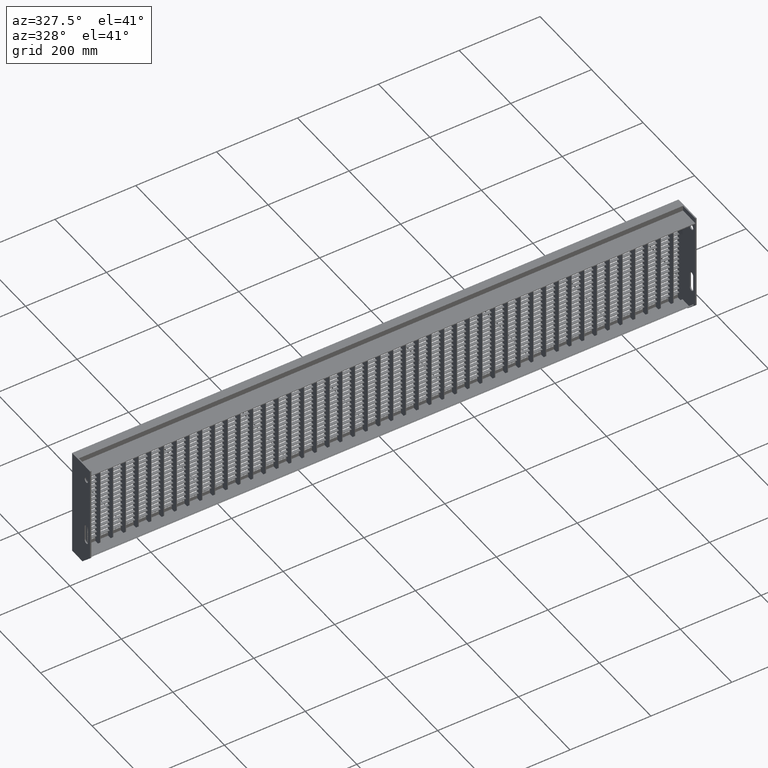
[diagram: clean part render]
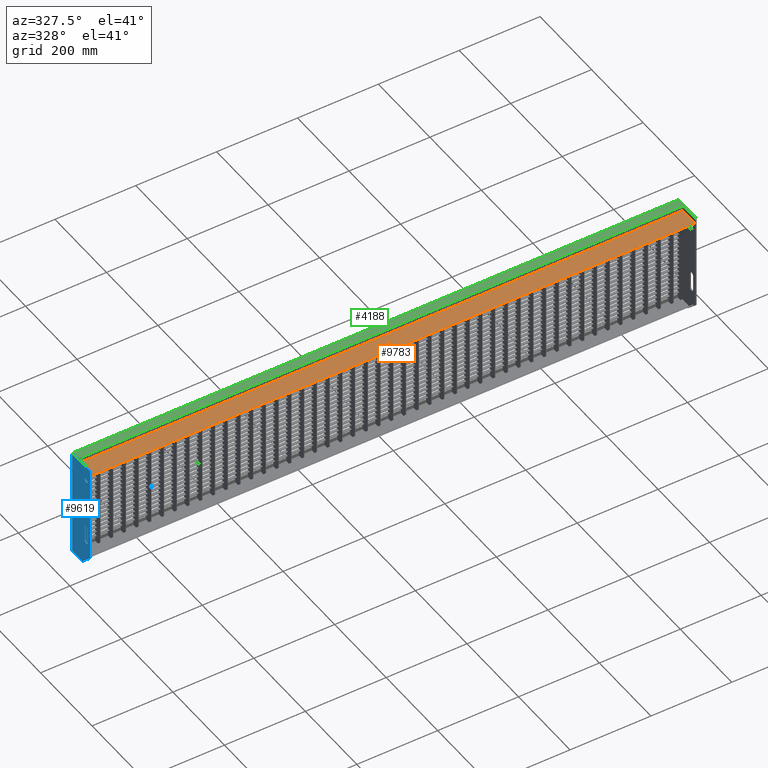
[diagram: same view with three faces highlighted in distinct colors, each labeled with its STEP entity id]
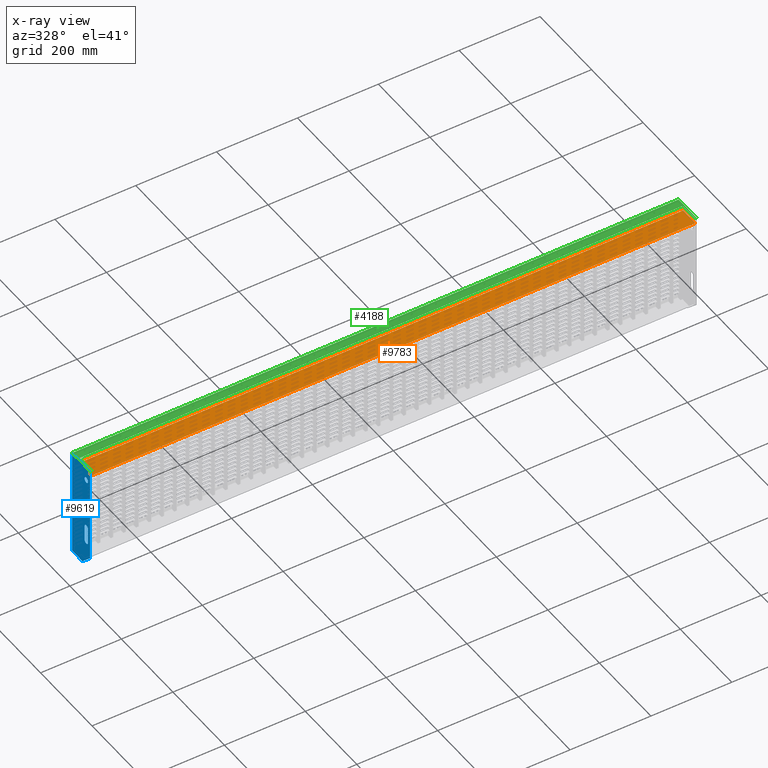
[diagram: x-ray of the same camera — body ghosted, the three highlighted faces saturated]
A machine part, auxiliary view with three faces highlighted in distinct colors.
The next image is the same camera in x-ray (body ghosted, the three faces saturated) — at least one of them is partly hidden behind the body in this view.
Their STEP definitions:

[orange] entity #9783 — the highlighted planar face has unit normal (0, -0, -1).
#2552 = PLANE ( 'NONE',  #5595 ) ;
#4447 = CARTESIAN_POINT ( 'NONE',  ( 747.0000000000000000, 48.00000000000011400, -13.00000000000000000 ) ) ;
#5595 = AXIS2_PLACEMENT_3D ( 'NONE', #23600, #43978, #19891 ) ;
#9718 = VECTOR ( 'NONE', #25368, 1000.000000000000000 ) ;
#9783 = ADVANCED_FACE ( 'NONE', ( #34456 ), #2552, .F. ) ;
#9870 = CARTESIAN_POINT ( 'NONE',  ( -747.0000000000000000, 2.755455298081544900E-013, -13.00000000000001100 ) ) ;
#10511 = VERTEX_POINT ( 'NONE', #23636 ) ;
#10850 = DIRECTION ( 'NONE',  ( 1.000000000000000000, -0.0000000000000000000, -0.0000000000000000000 ) ) ;
#11707 = DIRECTION ( 'NONE',  ( -0.0000000000000000000, 1.000000000000000000, -3.614007241618339900E-017 ) ) ;
#13529 = EDGE_LOOP ( 'NONE', ( #34089, #42555, #15536, #28841 ) ) ;
#13790 = LINE ( 'NONE', #37653, #19592 ) ;
#15169 = CARTESIAN_POINT ( 'NONE',  ( -747.0000000000000000, 48.00000000000011400, -13.00000000000000000 ) ) ;
#15536 = ORIENTED_EDGE ( 'NONE', *, *, #33456, .T. ) ;
#15710 = VERTEX_POINT ( 'NONE', #9870 ) ;
#19592 = VECTOR ( 'NONE', #10850, 1000.000000000000000 ) ;
#19891 = DIRECTION ( 'NONE',  ( 0.0000000000000000000, 1.000000000000000000, -3.614007241618340500E-017 ) ) ;
#20775 = VERTEX_POINT ( 'NONE', #15169 ) ;
#22779 = VERTEX_POINT ( 'NONE', #28107 ) ;
#23385 = EDGE_CURVE ( 'NONE', #10511, #22779, #34606, .T. ) ;
#23600 = CARTESIAN_POINT ( 'NONE',  ( -823.1577310586392300, 48.00000000000011400, -13.00000000000000000 ) ) ;
#23636 = CARTESIAN_POINT ( 'NONE',  ( 747.0000000000000000, 5.050613422867832400E-016, -12.99999999999999800 ) ) ;
#23801 = LINE ( 'NONE', #29527, #39794 ) ;
#23944 = VECTOR ( 'NONE', #11707, 1000.000000000000000 ) ;
#24299 = EDGE_CURVE ( 'NONE', #20775, #22779, #13790, .T. ) ;
#25368 = DIRECTION ( 'NONE',  ( 1.000000000000000000, -0.0000000000000000000, -0.0000000000000000000 ) ) ;
#25702 = EDGE_CURVE ( 'NONE', #20775, #15710, #23801, .T. ) ;
#28107 = CARTESIAN_POINT ( 'NONE',  ( 747.0000000000000000, 48.00000000000011400, -13.00000000000000000 ) ) ;
#28841 = ORIENTED_EDGE ( 'NONE', *, *, #23385, .T. ) ;
#29527 = CARTESIAN_POINT ( 'NONE',  ( -747.0000000000000000, 48.00000000000011400, -13.00000000000000000 ) ) ;
#32511 = CARTESIAN_POINT ( 'NONE',  ( -823.1577310586392300, 5.050613422867832400E-016, -12.99999999999999800 ) ) ;
#33456 = EDGE_CURVE ( 'NONE', #15710, #10511, #34218, .T. ) ;
#34089 = ORIENTED_EDGE ( 'NONE', *, *, #24299, .F. ) ;
#34218 = LINE ( 'NONE', #32511, #9718 ) ;
#34456 = FACE_OUTER_BOUND ( 'NONE', #13529, .T. ) ;
#34606 = LINE ( 'NONE', #4447, #23944 ) ;
#37653 = CARTESIAN_POINT ( 'NONE',  ( -823.1577310586392300, 48.00000000000011400, -13.00000000000000000 ) ) ;
#39794 = VECTOR ( 'NONE', #40105, 1000.000000000000000 ) ;
#40105 = DIRECTION ( 'NONE',  ( 0.0000000000000000000, -1.000000000000000000, 3.614007241618340500E-017 ) ) ;
#42555 = ORIENTED_EDGE ( 'NONE', *, *, #25702, .T. ) ;
#43978 = DIRECTION ( 'NONE',  ( 0.0000000000000000000, -3.614007241618340500E-017, -1.000000000000000000 ) ) ;

[blue] entity #9619 — the highlighted planar face has unit normal (1, 0, -0).
#120 = EDGE_CURVE ( 'NONE', #38455, #5864, #1165, .T. ) ;
#1165 = CIRCLE ( 'NONE', #10998, 6.500000000000005300 ) ;
#1824 = PLANE ( 'NONE',  #15557 ) ;
#3237 = EDGE_CURVE ( 'NONE', #43084, #30649, #37079, .T. ) ;
#3494 = CARTESIAN_POINT ( 'NONE',  ( -750.0000000000000000, 8.500000000000238000, -166.4999999999999400 ) ) ;
#3894 = VERTEX_POINT ( 'NONE', #36951 ) ;
#4539 = DIRECTION ( 'NONE',  ( 0.0000000000000000000, 0.0000000000000000000, -1.000000000000000000 ) ) ;
#4628 = CARTESIAN_POINT ( 'NONE',  ( -750.0000000000000000, 2.755455298081544900E-013, -240.0000000000001700 ) ) ;
#4788 = CARTESIAN_POINT ( 'NONE',  ( -750.0000000000000000, 70.00000000000028400, -270.0000000000000000 ) ) ;
#5740 = EDGE_CURVE ( 'NONE', #13554, #17498, #31503, .T. ) ;
#5797 = CIRCLE ( 'NONE', #8046, 6.500000000000005300 ) ;
#5852 = EDGE_CURVE ( 'NONE', #30649, #43084, #19787, .T. ) ;
#5864 = VERTEX_POINT ( 'NONE', #3494 ) ;
#5964 = CARTESIAN_POINT ( 'NONE',  ( -750.0000000000000000, 30.00000000000028100, -270.0000000000000000 ) ) ;
#6456 = VECTOR ( 'NONE', #38842, 1000.000000000000000 ) ;
#7367 = VERTEX_POINT ( 'NONE', #4628 ) ;
#7399 = EDGE_CURVE ( 'NONE', #25303, #14770, #18689, .T. ) ;
#7734 = DIRECTION ( 'NONE',  ( 1.000000000000000000, -0.0000000000000000000, -0.0000000000000000000 ) ) ;
#7818 = CARTESIAN_POINT ( 'NONE',  ( -750.0000000000000000, 70.00000000000028400, -270.0000000000000000 ) ) ;
#8046 = AXIS2_PLACEMENT_3D ( 'NONE', #9057, #32845, #39705 ) ;
#8134 = CARTESIAN_POINT ( 'NONE',  ( -750.0000000000000000, 2.755455298081544900E-013, 0.0000000000000000000 ) ) ;
#8199 = EDGE_LOOP ( 'NONE', ( #10297, #34919, #25826, #34680, #43824 ) ) ;
#8361 = EDGE_CURVE ( 'NONE', #14770, #9930, #15423, .T. ) ;
#9057 = CARTESIAN_POINT ( 'NONE',  ( -750.0000000000000000, 15.00000000000025800, -203.4999999999998900 ) ) ;
#9427 = FACE_OUTER_BOUND ( 'NONE', #8199, .T. ) ;
#9545 = VECTOR ( 'NONE', #25859, 1000.000000000000100 ) ;
#9619 = ADVANCED_FACE ( 'NONE', ( #22715, #30776, #9427 ), #1824, .F. ) ;
#9804 = DIRECTION ( 'NONE',  ( 0.0000000000000000000, 0.0000000000000000000, 1.000000000000000000 ) ) ;
#9930 = VERTEX_POINT ( 'NONE', #37941 ) ;
#10297 = ORIENTED_EDGE ( 'NONE', *, *, #14803, .F. ) ;
#10477 = ORIENTED_EDGE ( 'NONE', *, *, #5852, .T. ) ;
#10998 = AXIS2_PLACEMENT_3D ( 'NONE', #21403, #7734, #41487 ) ;
#12204 = LINE ( 'NONE', #5964, #9545 ) ;
#12225 = CARTESIAN_POINT ( 'NONE',  ( -750.0000000000000000, 15.00000000000025400, -35.00000000000000000 ) ) ;
#12747 = CARTESIAN_POINT ( 'NONE',  ( -750.0000000000000000, 21.50000000000025600, -203.4999999999998900 ) ) ;
#13278 = EDGE_CURVE ( 'NONE', #9930, #3894, #36288, .T. ) ;
#13554 = VERTEX_POINT ( 'NONE', #24699 ) ;
#13712 = CARTESIAN_POINT ( 'NONE',  ( -750.0000000000000000, 30.00000000000028100, -270.0000000000000000 ) ) ;
#14185 = EDGE_LOOP ( 'NONE', ( #43373, #24886, #32443, #22734, #34362 ) ) ;
#14228 = VECTOR ( 'NONE', #28454, 1000.000000000000000 ) ;
#14770 = VERTEX_POINT ( 'NONE', #7818 ) ;
#14803 = EDGE_CURVE ( 'NONE', #3894, #7367, #33867, .T. ) ;
#15423 = LINE ( 'NONE', #34039, #17552 ) ;
#15486 = CARTESIAN_POINT ( 'NONE',  ( -750.0000000000000000, 0.0000000000000000000, 0.0000000000000000000 ) ) ;
#15557 = AXIS2_PLACEMENT_3D ( 'NONE', #15486, #28415, #38877 ) ;
#16603 = VECTOR ( 'NONE', #33360, 1000.000000000000000 ) ;
#16691 = DIRECTION ( 'NONE',  ( 1.000000000000000000, -0.0000000000000000000, -0.0000000000000000000 ) ) ;
#17435 = CARTESIAN_POINT ( 'NONE',  ( -750.0000000000000000, 15.00000000000025400, -35.00000000000000000 ) ) ;
#17498 = VERTEX_POINT ( 'NONE', #37666 ) ;
#17552 = VECTOR ( 'NONE', #9804, 1000.000000000000000 ) ;
#18689 = LINE ( 'NONE', #4788, #6456 ) ;
#19237 = LINE ( 'NONE', #12747, #16603 ) ;
#19438 = EDGE_LOOP ( 'NONE', ( #10477, #40278 ) ) ;
#19787 = CIRCLE ( 'NONE', #28809, 6.499999999999999100 ) ;
#20107 = DIRECTION ( 'NONE',  ( 0.0000000000000000000, 0.0000000000000000000, -1.000000000000000000 ) ) ;
#20534 = DIRECTION ( 'NONE',  ( 1.000000000000000000, -0.0000000000000000000, -0.0000000000000000000 ) ) ;
#20779 = CARTESIAN_POINT ( 'NONE',  ( -750.0000000000000000, 15.00000000000025400, -41.50000000000000000 ) ) ;
#21403 = CARTESIAN_POINT ( 'NONE',  ( -750.0000000000000000, 15.00000000000025400, -166.4999999999999400 ) ) ;
#22429 = DIRECTION ( 'NONE',  ( 1.000000000000000000, -0.0000000000000000000, -0.0000000000000000000 ) ) ;
#22589 = DIRECTION ( 'NONE',  ( 0.0000000000000000000, 3.750753461571482800E-016, -1.000000000000000000 ) ) ;
#22715 = FACE_BOUND ( 'NONE', #14185, .T. ) ;
#22734 = ORIENTED_EDGE ( 'NONE', *, *, #40187, .T. ) ;
#22921 = VECTOR ( 'NONE', #25906, 1000.000000000000000 ) ;
#23213 = CARTESIAN_POINT ( 'NONE',  ( -750.0000000000000000, 15.00000000000025800, -203.4999999999998900 ) ) ;
#24024 = EDGE_CURVE ( 'NONE', #7367, #25303, #12204, .T. ) ;
#24528 = CARTESIAN_POINT ( 'NONE',  ( -750.0000000000000000, 21.50000000000025900, -203.4999999999998900 ) ) ;
#24699 = CARTESIAN_POINT ( 'NONE',  ( -750.0000000000000000, 8.500000000000252200, -203.4999999999998900 ) ) ;
#24826 = VECTOR ( 'NONE', #22589, 1000.000000000000000 ) ;
#24886 = ORIENTED_EDGE ( 'NONE', *, *, #5740, .T. ) ;
#25303 = VERTEX_POINT ( 'NONE', #13712 ) ;
#25826 = ORIENTED_EDGE ( 'NONE', *, *, #8361, .F. ) ;
#25859 = DIRECTION ( 'NONE',  ( 0.0000000000000000000, 0.7071067811865491300, -0.7071067811865459100 ) ) ;
#25906 = DIRECTION ( 'NONE',  ( 0.0000000000000000000, -1.000000000000000000, -0.0000000000000000000 ) ) ;
#28415 = DIRECTION ( 'NONE',  ( 1.000000000000000000, 0.0000000000000000000, -0.0000000000000000000 ) ) ;
#28454 = DIRECTION ( 'NONE',  ( 0.0000000000000000000, -0.0000000000000000000, -1.000000000000000000 ) ) ;
#28809 = AXIS2_PLACEMENT_3D ( 'NONE', #17435, #20534, #4539 ) ;
#30649 = VERTEX_POINT ( 'NONE', #20779 ) ;
#30674 = LINE ( 'NONE', #43261, #24826 ) ;
#30776 = FACE_BOUND ( 'NONE', #19438, .T. ) ;
#31307 = AXIS2_PLACEMENT_3D ( 'NONE', #12225, #22429, #32567 ) ;
#31503 = CIRCLE ( 'NONE', #38255, 6.500000000000005300 ) ;
#32443 = ORIENTED_EDGE ( 'NONE', *, *, #35447, .T. ) ;
#32567 = DIRECTION ( 'NONE',  ( 0.0000000000000000000, 0.0000000000000000000, -1.000000000000000000 ) ) ;
#32845 = DIRECTION ( 'NONE',  ( 1.000000000000000000, -0.0000000000000000000, -0.0000000000000000000 ) ) ;
#33360 = DIRECTION ( 'NONE',  ( 0.0000000000000000000, 3.750753461571482800E-016, 1.000000000000000000 ) ) ;
#33560 = CARTESIAN_POINT ( 'NONE',  ( -750.0000000000000000, 15.00000000000025400, -28.50000000000000400 ) ) ;
#33867 = LINE ( 'NONE', #41704, #14228 ) ;
#34039 = CARTESIAN_POINT ( 'NONE',  ( -750.0000000000000000, 70.00000000000028400, 0.0000000000000000000 ) ) ;
#34362 = ORIENTED_EDGE ( 'NONE', *, *, #120, .T. ) ;
#34680 = ORIENTED_EDGE ( 'NONE', *, *, #7399, .F. ) ;
#34919 = ORIENTED_EDGE ( 'NONE', *, *, #13278, .F. ) ;
#35447 = EDGE_CURVE ( 'NONE', #17498, #41036, #5797, .T. ) ;
#36288 = LINE ( 'NONE', #8134, #22921 ) ;
#36951 = CARTESIAN_POINT ( 'NONE',  ( -750.0000000000000000, 2.755455298081544900E-013, 0.0000000000000000000 ) ) ;
#37079 = CIRCLE ( 'NONE', #31307, 6.499999999999999100 ) ;
#37666 = CARTESIAN_POINT ( 'NONE',  ( -750.0000000000000000, 15.00000000000025800, -209.9999999999998900 ) ) ;
#37941 = CARTESIAN_POINT ( 'NONE',  ( -750.0000000000000000, 70.00000000000028400, 0.0000000000000000000 ) ) ;
#38255 = AXIS2_PLACEMENT_3D ( 'NONE', #23213, #16691, #20107 ) ;
#38455 = VERTEX_POINT ( 'NONE', #43509 ) ;
#38842 = DIRECTION ( 'NONE',  ( 0.0000000000000000000, 1.000000000000000000, 0.0000000000000000000 ) ) ;
#38877 = DIRECTION ( 'NONE',  ( 0.0000000000000000000, 0.0000000000000000000, 1.000000000000000000 ) ) ;
#39705 = DIRECTION ( 'NONE',  ( 0.0000000000000000000, 0.0000000000000000000, -1.000000000000000000 ) ) ;
#40187 = EDGE_CURVE ( 'NONE', #41036, #38455, #19237, .T. ) ;
#40278 = ORIENTED_EDGE ( 'NONE', *, *, #3237, .T. ) ;
#41036 = VERTEX_POINT ( 'NONE', #24528 ) ;
#41487 = DIRECTION ( 'NONE',  ( 0.0000000000000000000, 0.0000000000000000000, -1.000000000000000000 ) ) ;
#41704 = CARTESIAN_POINT ( 'NONE',  ( -750.0000000000000000, 2.755455298081544900E-013, -240.0000000000001700 ) ) ;
#43084 = VERTEX_POINT ( 'NONE', #33560 ) ;
#43261 = CARTESIAN_POINT ( 'NONE',  ( -750.0000000000000000, 8.500000000000238000, -166.4999999999999400 ) ) ;
#43373 = ORIENTED_EDGE ( 'NONE', *, *, #43968, .T. ) ;
#43509 = CARTESIAN_POINT ( 'NONE',  ( -750.0000000000000000, 21.50000000000027000, -166.4999999999999400 ) ) ;
#43824 = ORIENTED_EDGE ( 'NONE', *, *, #24024, .F. ) ;
#43968 = EDGE_CURVE ( 'NONE', #5864, #13554, #30674, .T. ) ;

[green] entity #4188 — the highlighted planar face has unit normal (0, 0, 1).
#675 = ORIENTED_EDGE ( 'NONE', *, *, #30889, .T. ) ;
#904 = ORIENTED_EDGE ( 'NONE', *, *, #41117, .F. ) ;
#1053 = ORIENTED_EDGE ( 'NONE', *, *, #24690, .T. ) ;
#1225 = CARTESIAN_POINT ( 'NONE',  ( -747.0000000000000000, 2.755455298081544900E-013, 0.0000000000000000000 ) ) ;
#2656 = CARTESIAN_POINT ( 'NONE',  ( 747.0000000000000000, 2.755455298081544900E-013, 0.0000000000000000000 ) ) ;
#3044 = ORIENTED_EDGE ( 'NONE', *, *, #31148, .T. ) ;
#3595 = DIRECTION ( 'NONE',  ( -0.0000000000000000000, -1.000000000000000000, -0.0000000000000000000 ) ) ;
#3894 = VERTEX_POINT ( 'NONE', #36951 ) ;
#4188 = ADVANCED_FACE ( 'NONE', ( #5567 ), #40013, .T. ) ;
#4193 = CARTESIAN_POINT ( 'NONE',  ( -747.0000000000000000, 2.755455298081544900E-013, 0.0000000000000000000 ) ) ;
#5567 = FACE_OUTER_BOUND ( 'NONE', #22631, .T. ) ;
#6489 = ORIENTED_EDGE ( 'NONE', *, *, #13278, .T. ) ;
#6937 = EDGE_CURVE ( 'NONE', #33252, #14274, #33069, .T. ) ;
#7487 = LINE ( 'NONE', #1225, #32479 ) ;
#7860 = VECTOR ( 'NONE', #15694, 1000.000000000000000 ) ;
#8134 = CARTESIAN_POINT ( 'NONE',  ( -750.0000000000000000, 2.755455298081544900E-013, 0.0000000000000000000 ) ) ;
#8552 = VECTOR ( 'NONE', #3595, 1000.000000000000000 ) ;
#8931 = CARTESIAN_POINT ( 'NONE',  ( 747.0000000000000000, 2.755455298081544900E-013, 0.0000000000000000000 ) ) ;
#9930 = VERTEX_POINT ( 'NONE', #37941 ) ;
#10380 = EDGE_CURVE ( 'NONE', #9930, #23105, #29137, .T. ) ;
#10440 = VECTOR ( 'NONE', #27126, 1000.000000000000000 ) ;
#13278 = EDGE_CURVE ( 'NONE', #9930, #3894, #36288, .T. ) ;
#13918 = ORIENTED_EDGE ( 'NONE', *, *, #34799, .F. ) ;
#14274 = VERTEX_POINT ( 'NONE', #4193 ) ;
#14401 = CARTESIAN_POINT ( 'NONE',  ( -747.0000000000000000, 2.755455298081544900E-013, 0.0000000000000000000 ) ) ;
#14740 = LINE ( 'NONE', #20273, #10440 ) ;
#15694 = DIRECTION ( 'NONE',  ( 1.000000000000000000, -0.0000000000000000000, -0.0000000000000000000 ) ) ;
#19408 = DIRECTION ( 'NONE',  ( -0.0000000000000000000, -1.000000000000000000, -0.0000000000000000000 ) ) ;
#19468 = DIRECTION ( 'NONE',  ( 1.000000000000000000, 0.0000000000000000000, -0.0000000000000000000 ) ) ;
#19583 = VECTOR ( 'NONE', #36473, 1000.000000000000000 ) ;
#20273 = CARTESIAN_POINT ( 'NONE',  ( 747.0000000000000000, 2.755455298081544900E-013, 0.0000000000000000000 ) ) ;
#21542 = CARTESIAN_POINT ( 'NONE',  ( 747.0000000000000000, 2.755455298081544900E-013, 0.0000000000000000000 ) ) ;
#22631 = EDGE_LOOP ( 'NONE', ( #13918, #42937, #6489, #904, #38487, #675, #1053, #3044 ) ) ;
#22921 = VECTOR ( 'NONE', #25906, 1000.000000000000000 ) ;
#23105 = VERTEX_POINT ( 'NONE', #37018 ) ;
#23306 = VERTEX_POINT ( 'NONE', #28047 ) ;
#23407 = LINE ( 'NONE', #40884, #8552 ) ;
#24690 = EDGE_CURVE ( 'NONE', #23306, #25414, #41401, .T. ) ;
#24978 = DIRECTION ( 'NONE',  ( -1.000000000000000000, 0.0000000000000000000, 0.0000000000000000000 ) ) ;
#25414 = VERTEX_POINT ( 'NONE', #21542 ) ;
#25906 = DIRECTION ( 'NONE',  ( 0.0000000000000000000, -1.000000000000000000, -0.0000000000000000000 ) ) ;
#26138 = VECTOR ( 'NONE', #38047, 1000.000000000000000 ) ;
#26293 = DIRECTION ( 'NONE',  ( 0.0000000000000000000, 0.0000000000000000000, 1.000000000000000000 ) ) ;
#27126 = DIRECTION ( 'NONE',  ( 1.000000000000000000, 0.0000000000000000000, 0.0000000000000000000 ) ) ;
#28047 = CARTESIAN_POINT ( 'NONE',  ( 747.0000000000000000, 48.00000000000011400, 0.0000000000000000000 ) ) ;
#29137 = LINE ( 'NONE', #32729, #19583 ) ;
#30889 = EDGE_CURVE ( 'NONE', #33252, #23306, #42395, .T. ) ;
#31148 = EDGE_CURVE ( 'NONE', #25414, #41015, #14740, .T. ) ;
#32354 = VECTOR ( 'NONE', #19408, 1000.000000000000000 ) ;
#32479 = VECTOR ( 'NONE', #24978, 1000.000000000000000 ) ;
#32729 = CARTESIAN_POINT ( 'NONE',  ( 747.0000000000000000, 70.00000000000028400, 0.0000000000000000000 ) ) ;
#33069 = LINE ( 'NONE', #14401, #26138 ) ;
#33252 = VERTEX_POINT ( 'NONE', #35239 ) ;
#34799 = EDGE_CURVE ( 'NONE', #23105, #41015, #23407, .T. ) ;
#35239 = CARTESIAN_POINT ( 'NONE',  ( -747.0000000000000000, 48.00000000000011400, 0.0000000000000000000 ) ) ;
#36288 = LINE ( 'NONE', #8134, #22921 ) ;
#36473 = DIRECTION ( 'NONE',  ( 1.000000000000000000, 0.0000000000000000000, 0.0000000000000000000 ) ) ;
#36951 = CARTESIAN_POINT ( 'NONE',  ( -750.0000000000000000, 2.755455298081544900E-013, 0.0000000000000000000 ) ) ;
#37018 = CARTESIAN_POINT ( 'NONE',  ( 750.0000000000000000, 70.00000000000028400, 0.0000000000000000000 ) ) ;
#37675 = CARTESIAN_POINT ( 'NONE',  ( 750.0000000000000000, 2.755455298081544900E-013, 0.0000000000000000000 ) ) ;
#37941 = CARTESIAN_POINT ( 'NONE',  ( -750.0000000000000000, 70.00000000000028400, 0.0000000000000000000 ) ) ;
#38047 = DIRECTION ( 'NONE',  ( 0.0000000000000000000, -1.000000000000000000, -0.0000000000000000000 ) ) ;
#38487 = ORIENTED_EDGE ( 'NONE', *, *, #6937, .F. ) ;
#38513 = CARTESIAN_POINT ( 'NONE',  ( -823.1577310586392300, 48.00000000000011400, 0.0000000000000000000 ) ) ;
#40013 = PLANE ( 'NONE',  #40151 ) ;
#40151 = AXIS2_PLACEMENT_3D ( 'NONE', #8931, #26293, #19468 ) ;
#40884 = CARTESIAN_POINT ( 'NONE',  ( 750.0000000000000000, 2.755455298081544900E-013, 0.0000000000000000000 ) ) ;
#41015 = VERTEX_POINT ( 'NONE', #37675 ) ;
#41117 = EDGE_CURVE ( 'NONE', #14274, #3894, #7487, .T. ) ;
#41401 = LINE ( 'NONE', #2656, #32354 ) ;
#42395 = LINE ( 'NONE', #38513, #7860 ) ;
#42937 = ORIENTED_EDGE ( 'NONE', *, *, #10380, .F. ) ;